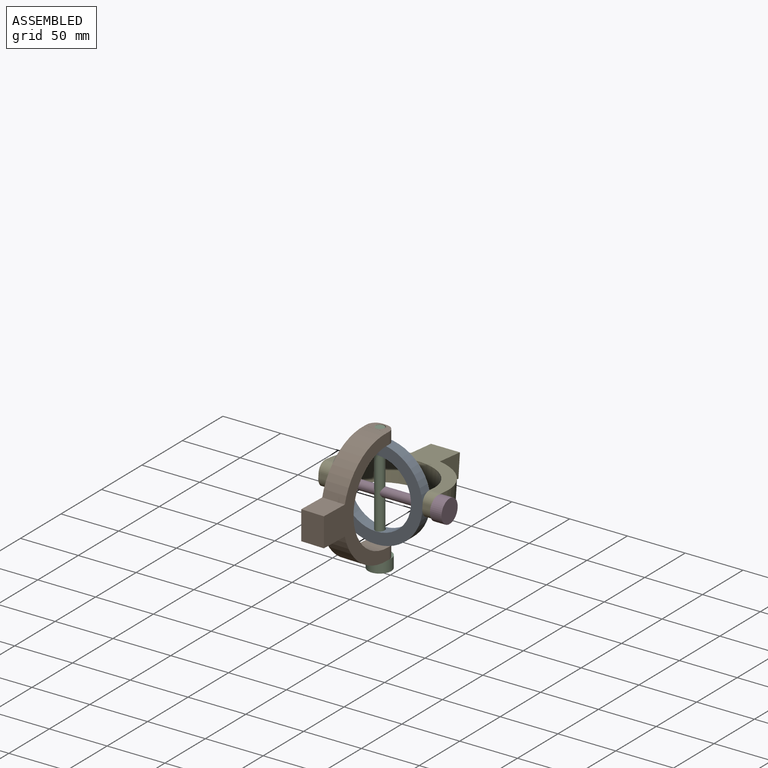
[diagram: assembled view]
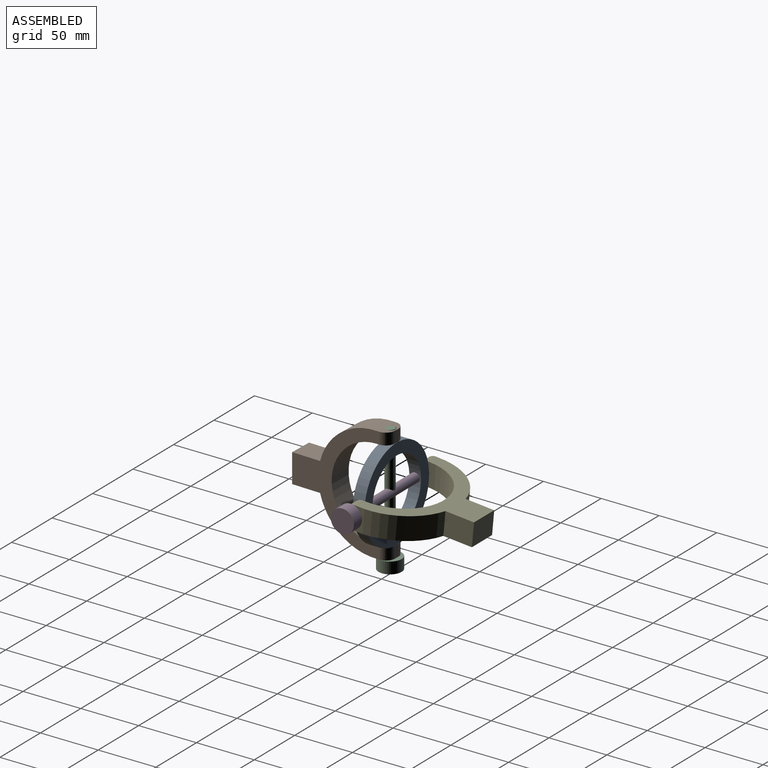
[diagram: assembled view, second angle]
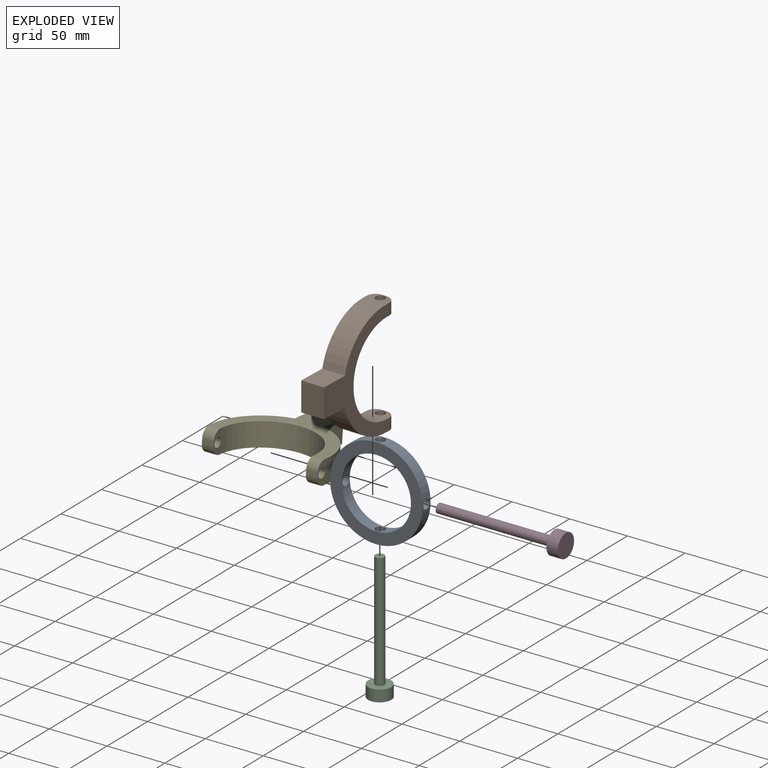
[diagram: exploded view]
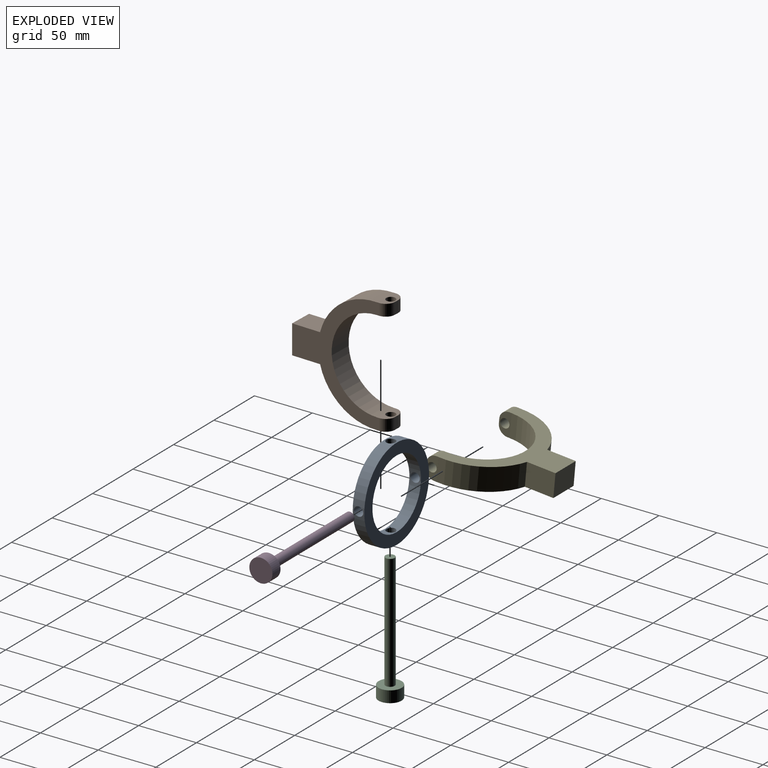
[diagram: exploded view, second angle]
ASSEMBLY  parts=5 mates=4
PART A: 8 faces, bbox 80x10x80 mm
  f0: cylinder r=30mm len=60mm, axis (0,1,0), area 1683.7mm2, adj f2,f3,f4,f5,f6,f7
  f1: cylinder r=40mm len=80mm, axis (0,1,0), area 2312mm2, adj f2,f3,f4,f5,f6,f7
  f2: plane 80x80mm, normal (0,-1,0), area 2199.1mm2, adj f0,f1
  f3: plane 80x80mm, normal (0,1,0), area 2199.1mm2, adj f0,f1
  f4: cylinder r=4mm len=10.27mm, axis (1,0,0), area 252.2mm2, adj f0,f1
  f5: cylinder r=4mm len=10.27mm, axis (1,0,0), area 252.2mm2, adj f0,f1
  f6: cylinder r=4mm len=10.27mm, axis (0,0,1), area 252.2mm2, adj f0,f1
  f7: cylinder r=4mm len=10.27mm, axis (0,0,1), area 252.2mm2, adj f0,f1
PART B: 22 faces, bbox 100x20x85 mm
  f0: plane 20x0.03mm, normal (0,0,-1), area 0.7mm2, adj f1,f13,f14,f15
  f1: cylinder r=50mm len=50.24mm, axis (0,1,0), area 1354.7mm2, adj f0,f2,f14,f15
  f2: plane 24.76x20mm, normal (-1,0,0), area 495.2mm2, adj f1,f3,f14,f15
  f3: plane 25x20mm, normal (0,0,-1), area 500mm2, adj f2,f4,f14,f15
  f4: plane 24.76x20mm, normal (1,0,0), area 495.2mm2, adj f3,f5,f14,f15
  f5: cylinder r=50mm len=50.24mm, axis (0,1,0), area 1354.7mm2, adj f4,f6,f14,f15
  f6: plane 20x0.03mm, normal (0,0,-1), area 0.7mm2, adj f5,f7,f14,f15
  f7: plane 20x10mm, normal (1,0,0), area 122.3mm2, adj f6,f8,f14,f15,f17,f19,f21
  f8: plane 10x4mm, normal (0,0,1), area 40mm2, adj f7,f9,f19,f21
  f9: plane 20x10mm, normal (-1,0,0), area 122.3mm2, adj f8,f10,f14,f15,f17,f19,f21
  f10: cylinder r=40mm len=80mm, axis (0,1,0), area 2513.3mm2, adj f9,f11,f14,f15
  f11: plane 20x10mm, normal (1,0,0), area 122.3mm2, adj f10,f12,f14,f15,f16,f18,f20
  f12: plane 10x4mm, normal (0,0,1), area 40mm2, adj f11,f13,f18,f20
  f13: plane 20x10mm, normal (-1,0,0), area 122.3mm2, adj f0,f12,f14,f15,f16,f18,f20
  f14: plane 100x77mm, normal (0,-1,0), area 2229mm2, adj f0,f1,f2,f3,f4,f5,f6,f7
  f15: plane 100x77mm, normal (0,1,0), area 2229mm2, adj f0,f1,f2,f3,f4,f5,f6,f7
  f16: cylinder r=4mm len=10mm, axis (1,0,0), area 251.3mm2, adj f11,f13
  f17: cylinder r=4mm len=10mm, axis (1,0,0), area 251.3mm2, adj f7,f9
  f18: cylinder r=8mm len=10mm, axis (-1,0,0), area 125.7mm2, adj f11,f12,f13,f15
  f19: cylinder r=8mm len=10mm, axis (-1,0,0), area 125.7mm2, adj f7,f8,f9,f15
  f20: cylinder r=8mm len=10mm, axis (1,0,0), area 125.7mm2, adj f11,f12,f13,f14
  f21: cylinder r=8mm len=10mm, axis (1,0,0), area 125.7mm2, adj f7,f8,f9,f14
PART C: 5 faces, bbox 20x110x20 mm
  f0: cylinder r=4mm len=100mm, axis (0,1,0), area 2513.3mm2, adj f1,f4
  f1: plane 8x8mm, normal (0,1,0), area 50.3mm2, adj f0
  f2: cylinder r=10mm len=20mm, axis (0,1,0), area 628.3mm2, adj f3,f4
  f3: plane 20x20mm, normal (0,-1,0), area 314.2mm2, adj f2
  f4: plane 20x20mm, normal (0,1,0), area 263.9mm2, adj f0,f2
PART D: same geometry as C
PART E: same geometry as B
PLACE A t=(14.83,28.6,22.56)mm fixed
PLACE B rot(axis=(-0.58,-0.56,-0.58),121.1deg) t=(24.66,18.27,22.62)mm
PLACE C rot(axis=(0.55,-0.59,-0.59),122.5deg) t=(14.8,22.88,22.62)mm
PLACE D rot(axis=(0.58,-0.58,0.57),120.9deg) t=(14.76,23.6,22.56)mm
PLACE E rot(axis=(1,0,0),84.7deg) t=(14.76,29.5,32.05)mm
MATE revolute C.f0 <-> B.f7  axis (0,0,1) through (14.8,22.88,72.62)mm
MATE revolute B.f16 <-> A.f6  axis (0,0,1) through (14.83,23.6,62.62)mm
MATE revolute A.f4 <-> E.f16  axis (1,0,0) through (-25.24,23.6,22.56)mm
MATE revolute D.f0 <-> E.f16  axis (-1,0,0) through (-35.24,23.6,22.56)mm
